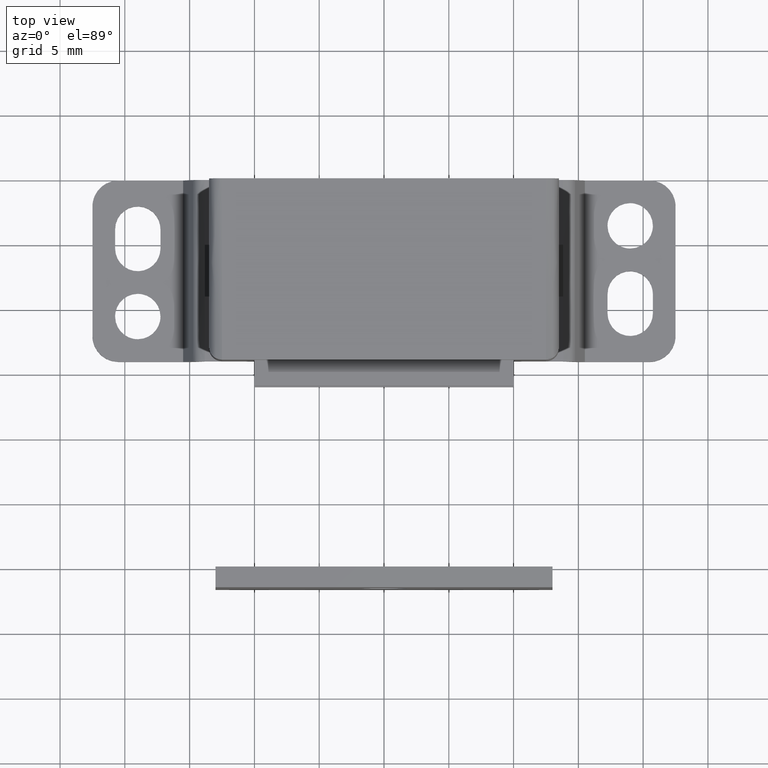
[diagram: clean part render]
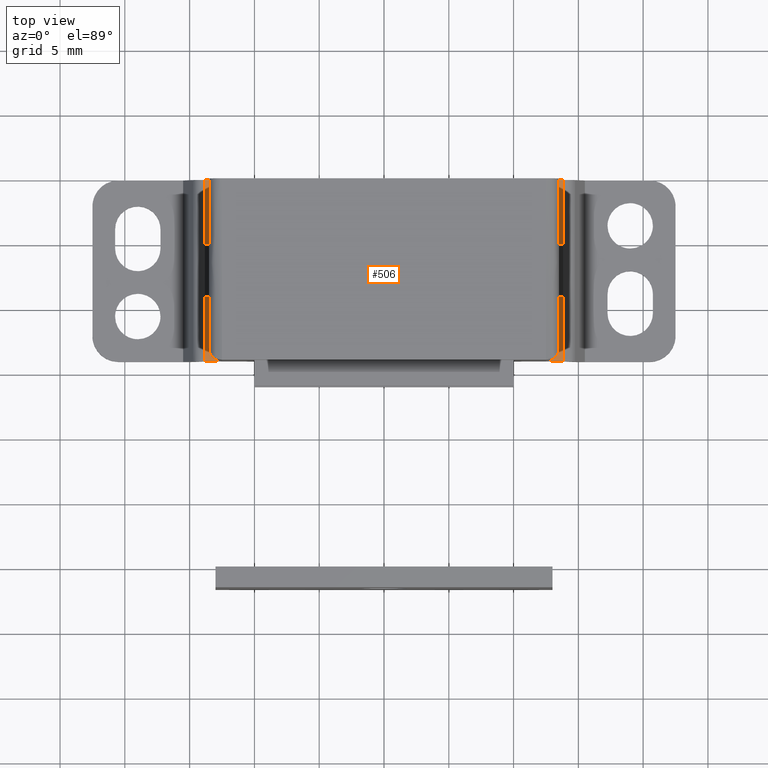
[diagram: same view with one face highlighted and labeled with its STEP entity id]
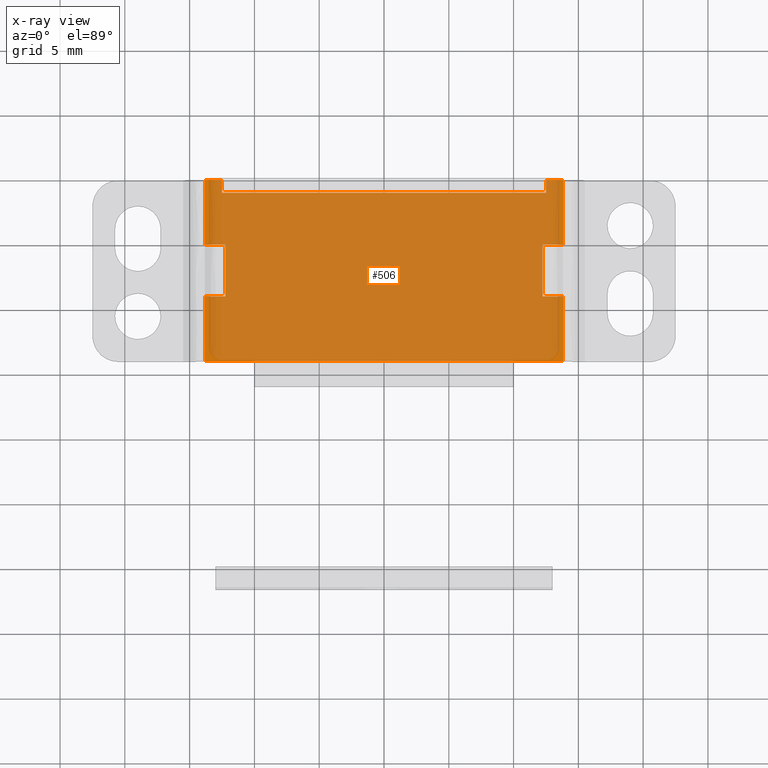
[diagram: x-ray of the same camera — body ghosted, the highlighted face saturated]
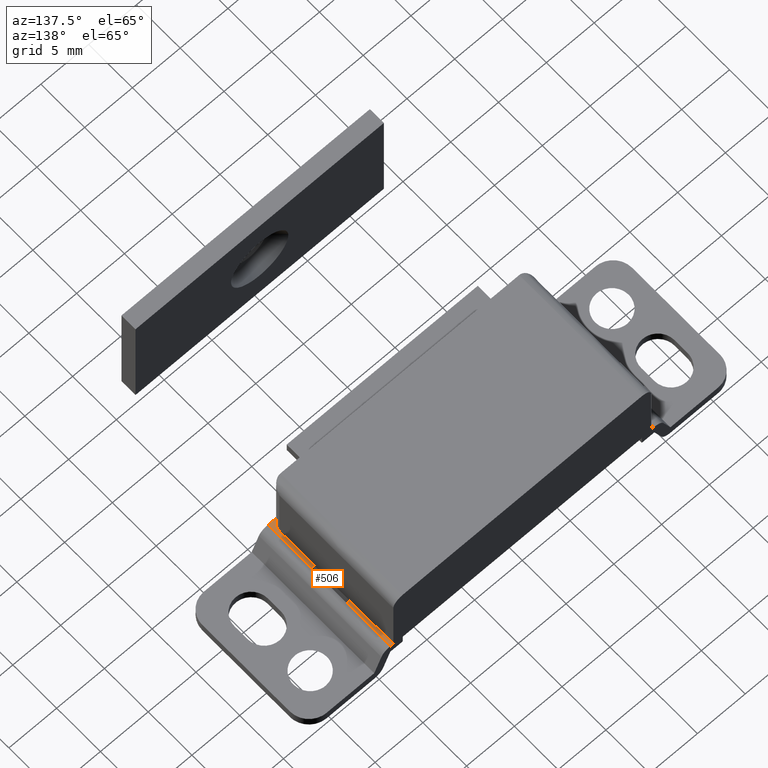
[diagram: same view with one face highlighted and labeled with its STEP entity id]
A machine part, top view. The second image highlights one B-rep face of the part: STEP entity #506.
The next image is the same camera in x-ray: the body ghosted, the highlighted face saturated — about 98% of this face is hidden behind the body in this view.
A second angle (auxiliary view) of the same face is appended — the face is thin or edge-on in the first view.
In plain terms, the highlighted face is a freeform B-spline surface patch.
Its self-contained STEP definition (entity closure, byte-faithful):
#373=CARTESIAN_POINT('',(15.203891469738471,-14.699299972865290,3.499999999999945));
#374=CARTESIAN_POINT('',(-15.203882572685600,-14.699299972865290,3.499999999999945));
#375=CARTESIAN_POINT('',(15.203891469738471,0.699300348374546,3.499999999999945));
#376=CARTESIAN_POINT('',(-15.203882572685600,0.699300348374546,3.499999999999945));
#377=B_SPLINE_SURFACE_WITH_KNOTS('',1,1,((#373,#375),(#374,#376)),.UNSPECIFIED.,.F.,.F.,.U.,(2,2),(2,2),(0.0,30.407774042424069),(0.0,15.398600321239829),.UNSPECIFIED.);
#378=CARTESIAN_POINT('',(-12.510014999999900,-1.0,3.499999999999945));
#379=VERTEX_POINT('',#378);
#380=CARTESIAN_POINT('',(-12.510014999999900,0.0,3.499999999999945));
#381=VERTEX_POINT('',#380);
#382=CARTESIAN_POINT('',(-12.510014999999900,-1.0,3.499999999999945));
#383=CARTESIAN_POINT('',(-12.510014999999900,0.0,3.499999999999945));
#384=QUASI_UNIFORM_CURVE('',1,(#382,#383),.UNSPECIFIED.,.F.,.U.);
#385=EDGE_CURVE('',#379,#381,#384,.T.);
#386=ORIENTED_EDGE('',*,*,#385,.T.);
#387=CARTESIAN_POINT('',(-13.822966638563919,0.0,3.499999999999945));
#388=VERTEX_POINT('',#387);
#389=CARTESIAN_POINT('',(-13.822966638563919,0.0,3.499999999999945));
#390=CARTESIAN_POINT('',(-12.510014999999900,0.0,3.499999999999945));
#391=QUASI_UNIFORM_CURVE('',1,(#389,#390),.UNSPECIFIED.,.F.,.U.);
#392=EDGE_CURVE('',#388,#381,#391,.T.);
#393=ORIENTED_EDGE('',*,*,#392,.F.);
#394=CARTESIAN_POINT('',(-13.822967000000000,-5.0,3.499999999999950));
#395=VERTEX_POINT('',#394);
#396=CARTESIAN_POINT('',(-13.822966638563919,0.0,3.499999999999945));
#397=CARTESIAN_POINT('',(-13.822967000000000,-5.0,3.499999999999950));
#398=QUASI_UNIFORM_CURVE('',1,(#396,#397),.UNSPECIFIED.,.F.,.U.);
#399=EDGE_CURVE('',#388,#395,#398,.T.);
#400=ORIENTED_EDGE('',*,*,#399,.T.);
#401=CARTESIAN_POINT('',(-12.234401999999999,-5.0,3.499999999999950));
#402=VERTEX_POINT('',#401);
#403=CARTESIAN_POINT('',(-12.234401999999999,-5.0,3.499999999999950));
#404=CARTESIAN_POINT('',(-13.822967000000000,-5.0,3.499999999999950));
#405=QUASI_UNIFORM_CURVE('',1,(#403,#404),.UNSPECIFIED.,.F.,.U.);
#406=EDGE_CURVE('',#402,#395,#405,.T.);
#407=ORIENTED_EDGE('',*,*,#406,.F.);
#408=CARTESIAN_POINT('',(-12.234401999999999,-9.0,3.499999999999950));
#409=VERTEX_POINT('',#408);
#410=CARTESIAN_POINT('',(-12.234401999999999,-9.0,3.499999999999950));
#411=CARTESIAN_POINT('',(-12.234401999999999,-5.0,3.499999999999950));
#412=QUASI_UNIFORM_CURVE('',1,(#410,#411),.UNSPECIFIED.,.F.,.U.);
#413=EDGE_CURVE('',#409,#402,#412,.T.);
#414=ORIENTED_EDGE('',*,*,#413,.F.);
#415=CARTESIAN_POINT('',(-13.822967000000000,-9.0,3.499999999999945));
#416=VERTEX_POINT('',#415);
#417=CARTESIAN_POINT('',(-13.822967000000000,-9.0,3.499999999999945));
#418=CARTESIAN_POINT('',(-12.234401999999999,-9.0,3.499999999999950));
#419=QUASI_UNIFORM_CURVE('',1,(#417,#418),.UNSPECIFIED.,.F.,.U.);
#420=EDGE_CURVE('',#416,#409,#419,.T.);
#421=ORIENTED_EDGE('',*,*,#420,.F.);
#422=CARTESIAN_POINT('',(-13.822966638563919,-14.0,3.499999999999945));
#423=VERTEX_POINT('',#422);
#424=CARTESIAN_POINT('',(-13.822967000000000,-9.0,3.499999999999945));
#425=CARTESIAN_POINT('',(-13.822966638563919,-14.0,3.499999999999945));
#426=QUASI_UNIFORM_CURVE('',1,(#424,#425),.UNSPECIFIED.,.F.,.U.);
#427=EDGE_CURVE('',#416,#423,#426,.T.);
#428=ORIENTED_EDGE('',*,*,#427,.T.);
#429=CARTESIAN_POINT('',(13.822976638574859,-14.0,3.499999999999945));
#430=VERTEX_POINT('',#429);
#431=CARTESIAN_POINT('',(-13.822966638563919,-14.0,3.499999999999945));
#432=CARTESIAN_POINT('',(13.822976638574859,-14.0,3.499999999999945));
#433=QUASI_UNIFORM_CURVE('',1,(#431,#432),.UNSPECIFIED.,.F.,.U.);
#434=EDGE_CURVE('',#423,#430,#433,.T.);
#435=ORIENTED_EDGE('',*,*,#434,.T.);
#436=CARTESIAN_POINT('',(13.822967000000000,-9.0,3.499999999999950));
#437=VERTEX_POINT('',#436);
#438=CARTESIAN_POINT('',(13.822976638574859,-14.0,3.499999999999945));
#439=CARTESIAN_POINT('',(13.822967000000000,-9.0,3.499999999999950));
#440=QUASI_UNIFORM_CURVE('',1,(#438,#439),.UNSPECIFIED.,.F.,.U.);
#441=EDGE_CURVE('',#430,#437,#440,.T.);
#442=ORIENTED_EDGE('',*,*,#441,.T.);
#443=CARTESIAN_POINT('',(12.234401999999999,-9.0,3.499999999999950));
#444=VERTEX_POINT('',#443);
#445=CARTESIAN_POINT('',(13.822967000000000,-9.0,3.499999999999950));
#446=CARTESIAN_POINT('',(12.234401999999999,-9.0,3.499999999999950));
#447=QUASI_UNIFORM_CURVE('',1,(#445,#446),.UNSPECIFIED.,.F.,.U.);
#448=EDGE_CURVE('',#437,#444,#447,.T.);
#449=ORIENTED_EDGE('',*,*,#448,.T.);
#450=CARTESIAN_POINT('',(12.234401999999999,-5.0,3.499999999999950));
#451=VERTEX_POINT('',#450);
#452=CARTESIAN_POINT('',(12.234401999999999,-9.0,3.499999999999950));
#453=CARTESIAN_POINT('',(12.234401999999999,-5.0,3.499999999999950));
#454=QUASI_UNIFORM_CURVE('',1,(#452,#453),.UNSPECIFIED.,.F.,.U.);
#455=EDGE_CURVE('',#444,#451,#454,.T.);
#456=ORIENTED_EDGE('',*,*,#455,.T.);
#457=CARTESIAN_POINT('',(13.822967000000000,-5.0,3.499999999999945));
#458=VERTEX_POINT('',#457);
#459=CARTESIAN_POINT('',(12.234401999999999,-5.0,3.499999999999950));
#460=CARTESIAN_POINT('',(13.822967000000000,-5.0,3.499999999999945));
#461=QUASI_UNIFORM_CURVE('',1,(#459,#460),.UNSPECIFIED.,.F.,.U.);
#462=EDGE_CURVE('',#451,#458,#461,.T.);
#463=ORIENTED_EDGE('',*,*,#462,.T.);
#464=CARTESIAN_POINT('',(13.822976638574859,0.0,3.499999999999945));
#465=VERTEX_POINT('',#464);
#466=CARTESIAN_POINT('',(13.822967000000000,-5.0,3.499999999999945));
#467=CARTESIAN_POINT('',(13.822976638574859,0.0,3.499999999999945));
#468=QUASI_UNIFORM_CURVE('',1,(#466,#467),.UNSPECIFIED.,.F.,.U.);
#469=EDGE_CURVE('',#458,#465,#468,.T.);
#470=ORIENTED_EDGE('',*,*,#469,.T.);
#471=CARTESIAN_POINT('',(12.510014999999900,0.0,3.499999999999945));
#472=VERTEX_POINT('',#471);
#473=CARTESIAN_POINT('',(12.510014999999900,0.0,3.499999999999945));
#474=CARTESIAN_POINT('',(13.822976638574859,0.0,3.499999999999945));
#475=QUASI_UNIFORM_CURVE('',1,(#473,#474),.UNSPECIFIED.,.F.,.U.);
#476=EDGE_CURVE('',#472,#465,#475,.T.);
#477=ORIENTED_EDGE('',*,*,#476,.F.);
#478=CARTESIAN_POINT('',(12.510014999999900,-1.0,3.499999999999945));
#479=VERTEX_POINT('',#478);
#480=CARTESIAN_POINT('',(12.510014999999900,-1.0,3.499999999999945));
#481=CARTESIAN_POINT('',(12.510014999999900,0.0,3.499999999999945));
#482=QUASI_UNIFORM_CURVE('',1,(#480,#481),.UNSPECIFIED.,.F.,.U.);
#483=EDGE_CURVE('',#479,#472,#482,.T.);
#484=ORIENTED_EDGE('',*,*,#483,.F.);
#485=CARTESIAN_POINT('',(12.500014999999900,-1.0,3.499999999999945));
#486=VERTEX_POINT('',#485);
#487=CARTESIAN_POINT('',(12.500014999999900,-1.0,3.499999999999945));
#488=CARTESIAN_POINT('',(12.510014999999900,-1.0,3.499999999999945));
#489=QUASI_UNIFORM_CURVE('',1,(#487,#488),.UNSPECIFIED.,.F.,.U.);
#490=EDGE_CURVE('',#486,#479,#489,.T.);
#491=ORIENTED_EDGE('',*,*,#490,.F.);
#492=CARTESIAN_POINT('',(-12.500014999999900,-1.0,3.499999999999945));
#493=VERTEX_POINT('',#492);
#494=CARTESIAN_POINT('',(12.500014999999900,-1.0,3.499999999999945));
#495=CARTESIAN_POINT('',(-12.500014999999900,-1.0,3.499999999999945));
#496=QUASI_UNIFORM_CURVE('',1,(#494,#495),.UNSPECIFIED.,.F.,.U.);
#497=EDGE_CURVE('',#486,#493,#496,.T.);
#498=ORIENTED_EDGE('',*,*,#497,.T.);
#499=CARTESIAN_POINT('',(-12.500014999999900,-1.0,3.499999999999945));
#500=CARTESIAN_POINT('',(-12.510014999999900,-1.0,3.499999999999945));
#501=QUASI_UNIFORM_CURVE('',1,(#499,#500),.UNSPECIFIED.,.F.,.U.);
#502=EDGE_CURVE('',#493,#379,#501,.T.);
#503=ORIENTED_EDGE('',*,*,#502,.T.);
#504=EDGE_LOOP('',(#386,#393,#400,#407,#414,#421,#428,#435,#442,#449,#456,#463,#470,#477,#484,#491,#498,#503));
#505=FACE_OUTER_BOUND('',#504,.T.);
#506=ADVANCED_FACE('',(#505),#377,.F.);